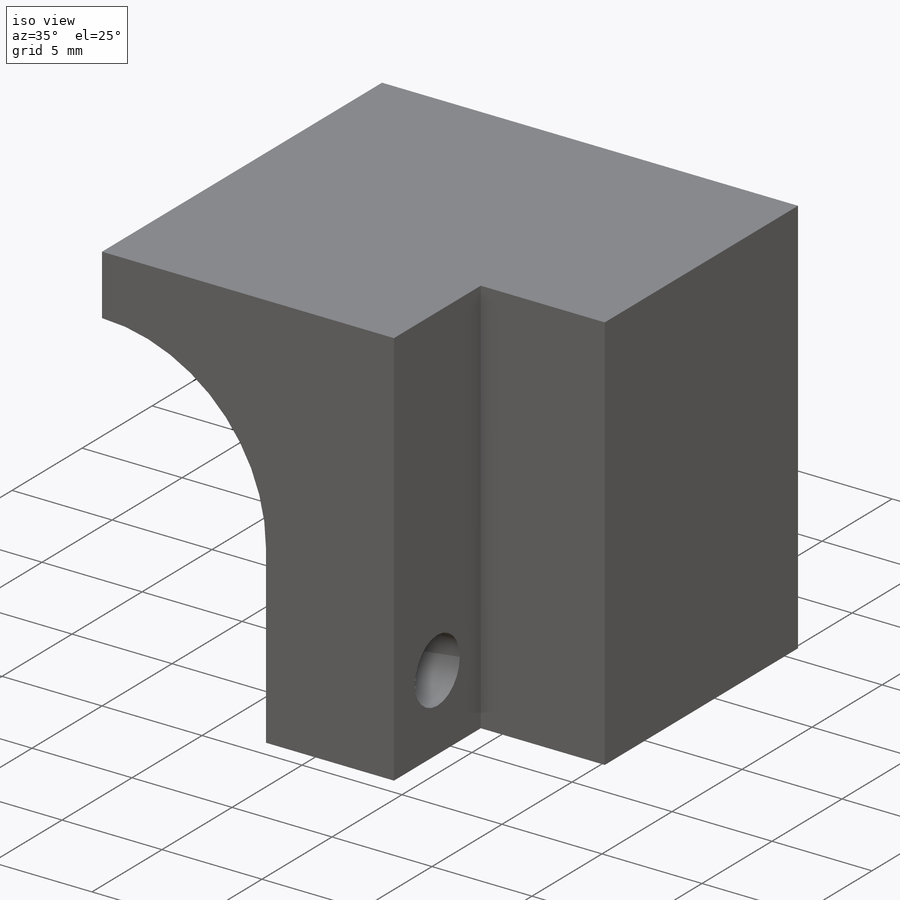
[diagram: iso view]
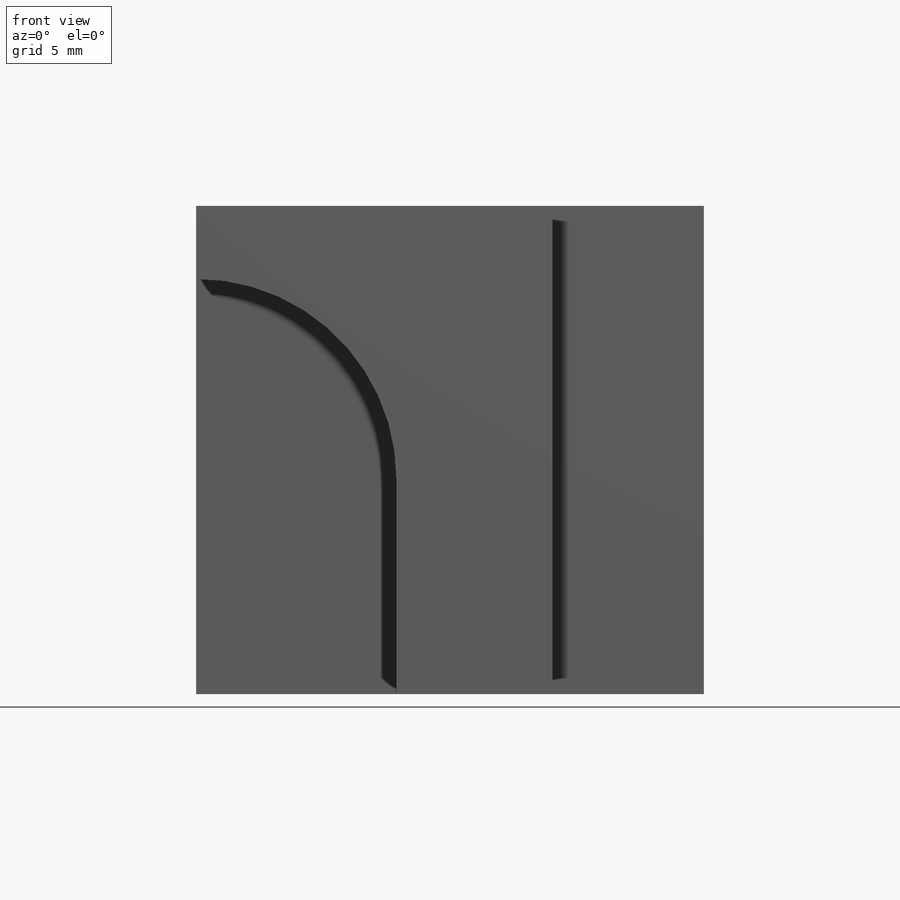
[diagram: front view]
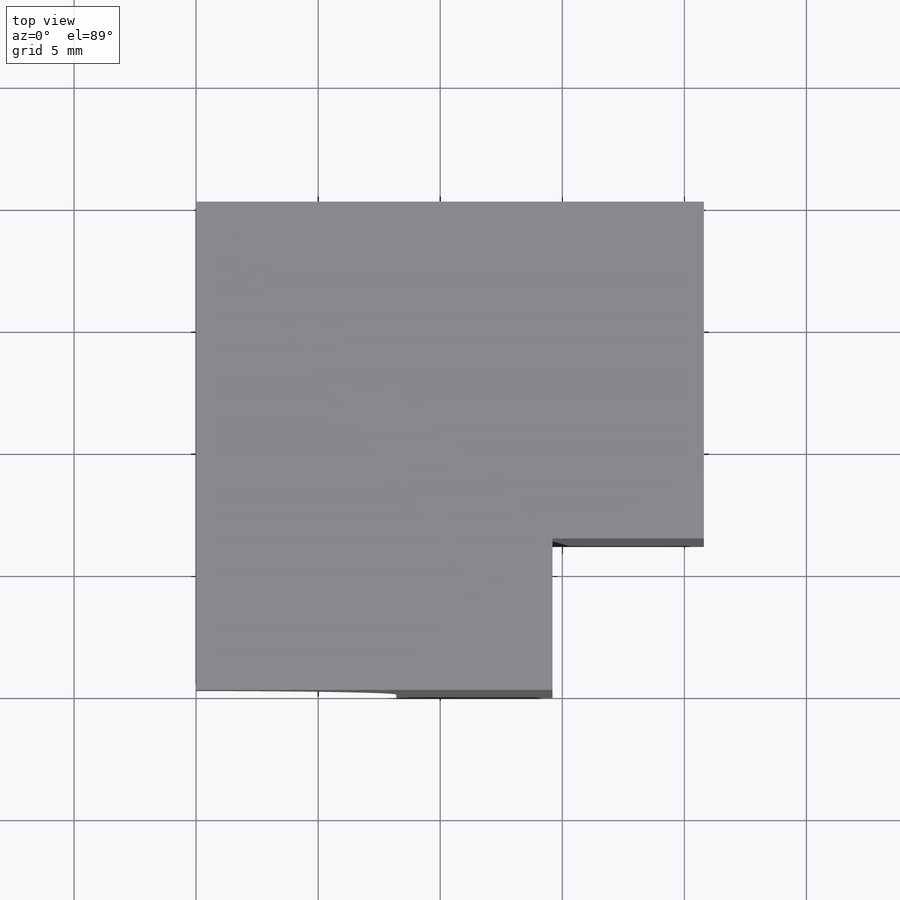
[diagram: top view]
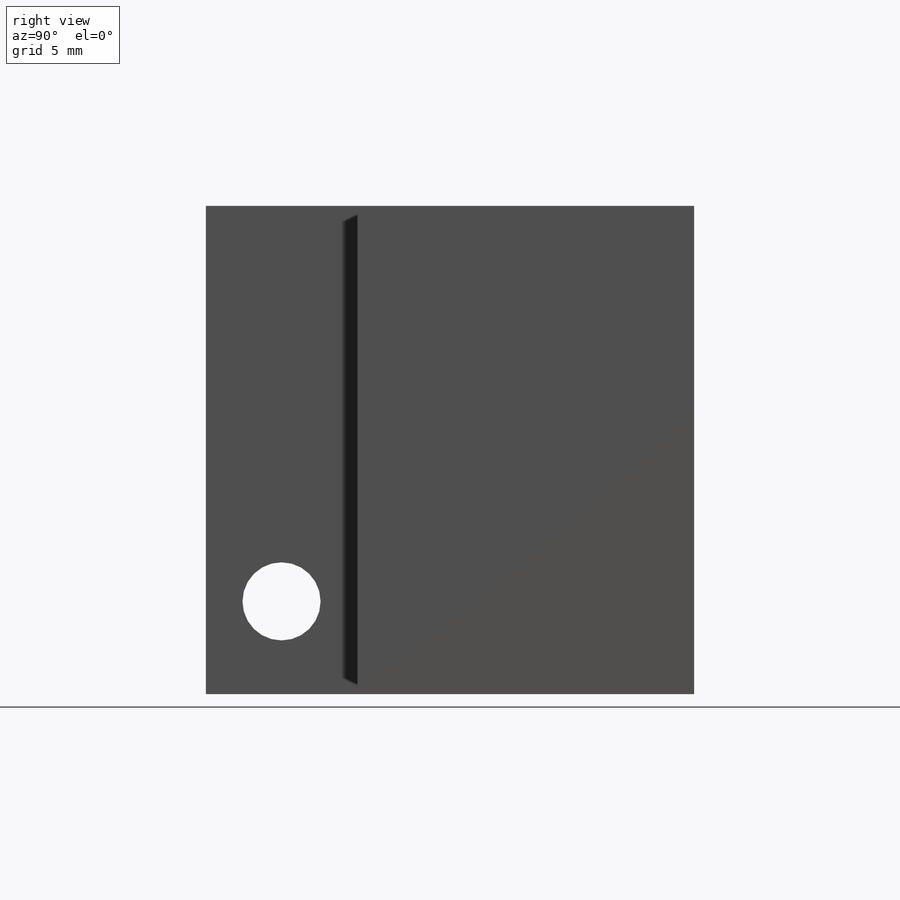
[diagram: right view]
SOLIDWORKS PART (.sldprt)
format: sldprt  version: not decoded by parser v0  size: 183,296 bytes
history: native  units: mm
features: sketch x5, plane x3, extrude x3, cut_extrude x2, material x1 (+13 scaffold rows collapsed)
feature tree (27):
  scaffold x13  (default folders/planes/origin — collapsed)
  material  "Material <sin especificar>"
  plane  "Alzado"
  plane  "Planta"
  plane  "Vista lateral"
  sketch  "Croquis1"  dims[D1=20.8mm D2=20.0mm]
  extrude  "Saliente-Extruir1"  Depth=2mm
  sketch  "Croquis2"  dims[D2=8.2mm D3=3.0mm D1=0.0mm]
  extrude  "Saliente-Extruir2"  Depth=11.8mm
  sketch  "Croquis3"  dims[D2=6.2mm D1=0.0mm]
  extrude  "Saliente-Extruir3"  Depth=6.2mm
  sketch  "Croquis4"  dims[D2=3.2mm D1=16.2mm]
  cut_extrude  "Cortar-Extruir1"  [1 undecoded]
  sketch  "Croquis5"  dims[D1=5.7mm]
  cut_extrude  "Cortar-Extruir2"  Depth=3mm
decode coverage: 9 of 10 modeling features carry decoded parameters
note: 1 parameter value undecoded
note: suppression state not decoded; provenance and decode notes live in map.json
